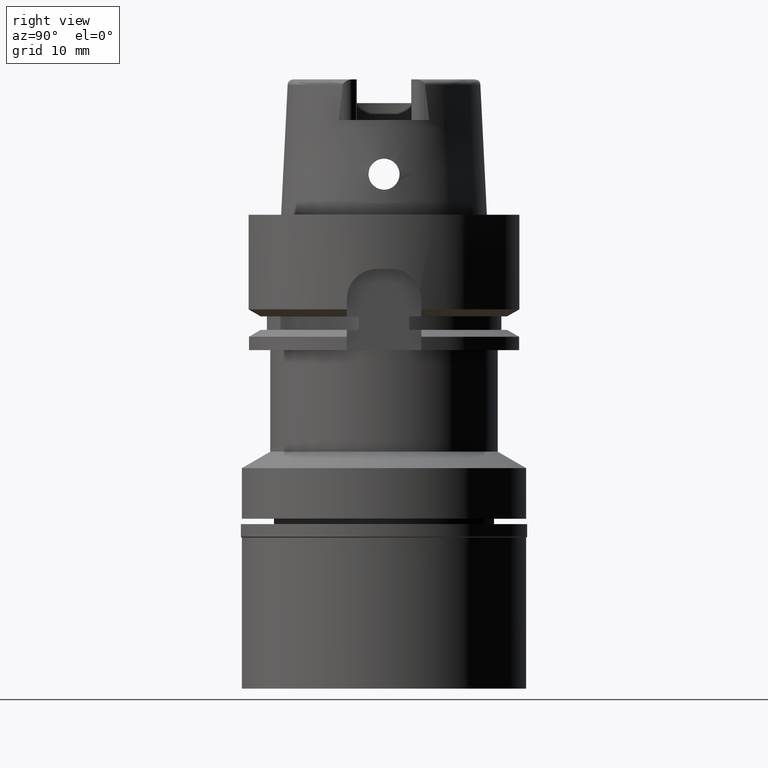
[diagram: clean part render]
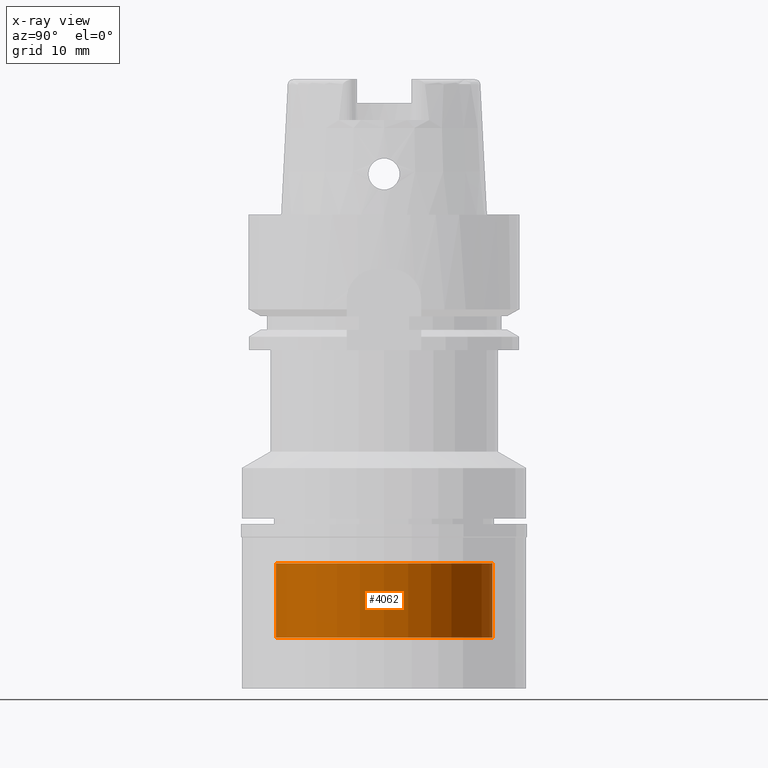
[diagram: x-ray — body ghosted, one internal face saturated and labeled with its STEP entity id]
A machine part, right view, then the same camera in x-ray: the body is ghosted and one INTERNAL B-rep face — a face not visible from any outside direction — is saturated and labeled: STEP entity #4062.
In plain terms, the highlighted cylindrical surface (partial cylindrical patch) has radius 16 mm, axis along (0, 0, -1).
Its self-contained STEP definition (entity closure, byte-faithful):
#29 = AXIS2_PLACEMENT_3D ( 'NONE', #3007, #4189, #1224 ) ;
#224 = EDGE_LOOP ( 'NONE', ( #1444, #1659, #803, #5134 ) ) ;
#380 = VERTEX_POINT ( 'NONE', #4217 ) ;
#671 = CARTESIAN_POINT ( 'NONE',  ( 0.0000000000000000000, 1.520092839441999965E-14, -62.50000000000000000 ) ) ;
#732 = VECTOR ( 'NONE', #3738, 1000.000000000000000 ) ;
#803 = ORIENTED_EDGE ( 'NONE', *, *, #4182, .T. ) ;
#971 = CARTESIAN_POINT ( 'NONE',  ( 0.0000000000000000000, -16.00000000000000000, -51.50000000000000000 ) ) ;
#1096 = CIRCLE ( 'NONE', #4186, 16.00000000000000000 ) ;
#1189 = AXIS2_PLACEMENT_3D ( 'NONE', #5282, #2298, #2244 ) ;
#1224 = DIRECTION ( 'NONE',  ( 0.0000000000000000000, -1.000000000000000000, 0.0000000000000000000 ) ) ;
#1318 = LINE ( 'NONE', #1693, #732 ) ;
#1444 = ORIENTED_EDGE ( 'NONE', *, *, #1495, .T. ) ;
#1495 = EDGE_CURVE ( 'NONE', #380, #4339, #4110, .T. ) ;
#1659 = ORIENTED_EDGE ( 'NONE', *, *, #3954, .T. ) ;
#1693 = CARTESIAN_POINT ( 'NONE',  ( 0.0000000000000000000, 16.00000000000000000, -51.50000000000000000 ) ) ;
#1892 = CARTESIAN_POINT ( 'NONE',  ( 0.0000000000000000000, -16.00000000000000000, -62.50000000000000000 ) ) ;
#2112 = CARTESIAN_POINT ( 'NONE',  ( 0.0000000000000000000, -16.00000000000000000, -51.50000000000000000 ) ) ;
#2244 = DIRECTION ( 'NONE',  ( 0.0000000000000000000, 1.000000000000000000, 0.0000000000000000000 ) ) ;
#2290 = DIRECTION ( 'NONE',  ( 0.0000000000000000000, 0.0000000000000000000, 1.000000000000000000 ) ) ;
#2298 = DIRECTION ( 'NONE',  ( 0.0000000000000000000, 0.0000000000000000000, -1.000000000000000000 ) ) ;
#2891 = FACE_OUTER_BOUND ( 'NONE', #224, .T. ) ;
#3007 = CARTESIAN_POINT ( 'NONE',  ( 0.0000000000000000000, 1.520092839441999965E-14, 24.12500000000000000 ) ) ;
#3236 = EDGE_CURVE ( 'NONE', #380, #4290, #1318, .T. ) ;
#3263 = CARTESIAN_POINT ( 'NONE',  ( 0.0000000000000000000, 16.00000000000000000, -62.50000000000000000 ) ) ;
#3738 = DIRECTION ( 'NONE',  ( 0.0000000000000000000, 0.0000000000000000000, -1.000000000000000000 ) ) ;
#3882 = LINE ( 'NONE', #971, #4707 ) ;
#3954 = EDGE_CURVE ( 'NONE', #4339, #5212, #3882, .T. ) ;
#4062 = ADVANCED_FACE ( 'NONE', ( #2891 ), #5085, .T. ) ;
#4110 = CIRCLE ( 'NONE', #1189, 16.00000000000000000 ) ;
#4182 = EDGE_CURVE ( 'NONE', #5212, #4290, #1096, .T. ) ;
#4186 = AXIS2_PLACEMENT_3D ( 'NONE', #671, #2290, #4483 ) ;
#4189 = DIRECTION ( 'NONE',  ( 0.0000000000000000000, 0.0000000000000000000, -1.000000000000000000 ) ) ;
#4217 = CARTESIAN_POINT ( 'NONE',  ( 0.0000000000000000000, 16.00000000000000000, -51.50000000000000000 ) ) ;
#4290 = VERTEX_POINT ( 'NONE', #3263 ) ;
#4339 = VERTEX_POINT ( 'NONE', #2112 ) ;
#4483 = DIRECTION ( 'NONE',  ( 0.0000000000000000000, -1.000000000000000000, 0.0000000000000000000 ) ) ;
#4707 = VECTOR ( 'NONE', #4781, 1000.000000000000000 ) ;
#4781 = DIRECTION ( 'NONE',  ( 0.0000000000000000000, 0.0000000000000000000, -1.000000000000000000 ) ) ;
#5085 = CYLINDRICAL_SURFACE ( 'NONE', #29, 16.00000000000000000 ) ;
#5134 = ORIENTED_EDGE ( 'NONE', *, *, #3236, .F. ) ;
#5212 = VERTEX_POINT ( 'NONE', #1892 ) ;
#5282 = CARTESIAN_POINT ( 'NONE',  ( 0.0000000000000000000, 1.520092839441999965E-14, -51.50000000000000000 ) ) ;